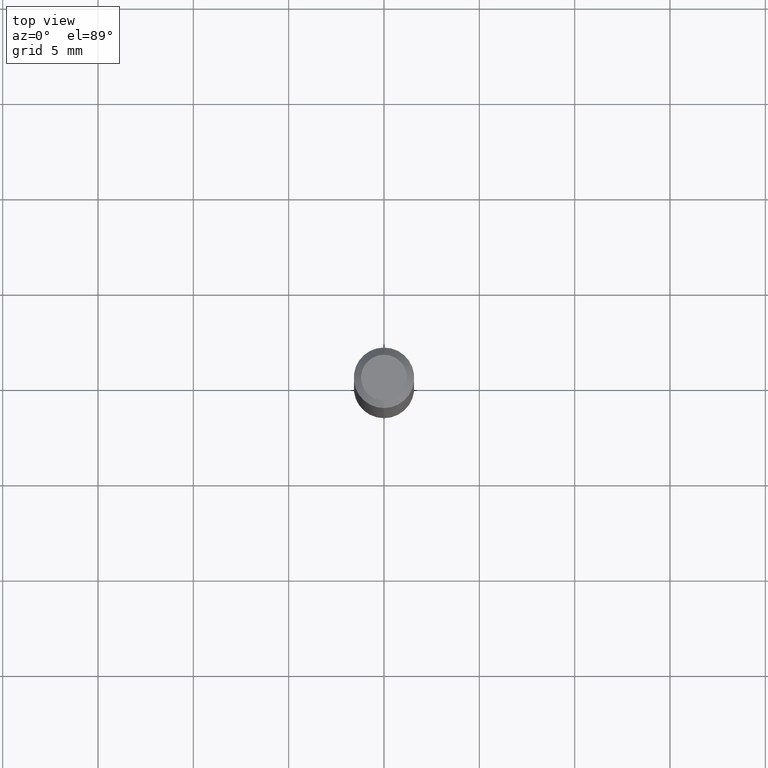
[diagram: clean part render]
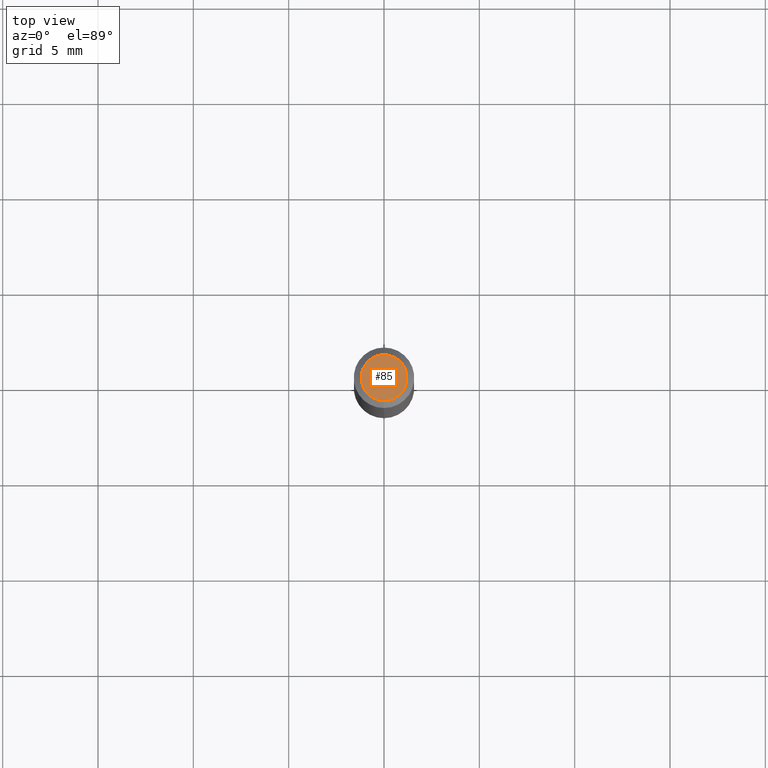
[diagram: same view with one face highlighted and labeled with its STEP entity id]
A machine part, top view. The second image highlights one B-rep face of the part: STEP entity #85.
In plain terms, the highlighted planar face has unit normal (0, -0, -1).
Its self-contained STEP definition (entity closure, byte-faithful):
#19 = CIRCLE ( 'NONE', #227, 0.04749999999999999362 ) ;
#36 = EDGE_CURVE ( 'NONE', #133, #316, #19, .T. ) ;
#49 = DIRECTION ( 'NONE',  ( -2.445459386778568343E-29, 3.491494827969470629E-15, 1.000000000000000000 ) ) ;
#55 = DIRECTION ( 'NONE',  ( -2.445459386778568343E-29, 3.491494827969470629E-15, 1.000000000000000000 ) ) ;
#85 = ADVANCED_FACE ( 'NONE', ( #461 ), #104, .F. ) ;
#96 = DIRECTION ( 'NONE',  ( -6.982962677686266711E-15, -1.000000000000000000, 3.491494827969471024E-15 ) ) ;
#104 = PLANE ( 'NONE',  #187 ) ;
#118 = ORIENTED_EDGE ( 'NONE', *, *, #444, .T. ) ;
#133 = VERTEX_POINT ( 'NONE', #429 ) ;
#153 = DIRECTION ( 'NONE',  ( 6.982962677686265922E-15, 1.000000000000000000, -3.491494827969470629E-15 ) ) ;
#156 = CARTESIAN_POINT ( 'NONE',  ( -3.773273898774340269E-16, -0.04749999999999999362, 1.569863254702192129E-16 ) ) ;
#187 = AXIS2_PLACEMENT_3D ( 'NONE', #386, #232, #153 ) ;
#193 = CIRCLE ( 'NONE', #259, 0.04749999999999999362 ) ;
#227 = AXIS2_PLACEMENT_3D ( 'NONE', #411, #49, #499 ) ;
#232 = DIRECTION ( 'NONE',  ( 2.445459386778568062E-29, -3.491494827969470629E-15, -1.000000000000000000 ) ) ;
#259 = AXIS2_PLACEMENT_3D ( 'NONE', #416, #55, #96 ) ;
#316 = VERTEX_POINT ( 'NONE', #156 ) ;
#386 = CARTESIAN_POINT ( 'NONE',  ( 3.316907271900976096E-16, 0.04749999999999999362, -1.702758437577151700E-16 ) ) ;
#411 = CARTESIAN_POINT ( 'NONE',  ( 2.166598482794832902E-46, -3.093352291133195289E-32, -8.859678858330654978E-18 ) ) ;
#416 = CARTESIAN_POINT ( 'NONE',  ( 2.166598482794832902E-46, -3.093352291133195289E-32, -8.859678858330654978E-18 ) ) ;
#429 = CARTESIAN_POINT ( 'NONE',  ( 3.840629472727447874E-16, 0.04749999999999999362, -1.747056831868805136E-16 ) ) ;
#444 = EDGE_CURVE ( 'NONE', #316, #133, #193, .T. ) ;
#457 = EDGE_LOOP ( 'NONE', ( #497, #118 ) ) ;
#461 = FACE_OUTER_BOUND ( 'NONE', #457, .T. ) ;
#497 = ORIENTED_EDGE ( 'NONE', *, *, #36, .T. ) ;
#499 = DIRECTION ( 'NONE',  ( -6.982962677686266711E-15, -1.000000000000000000, 3.491494827969471024E-15 ) ) ;